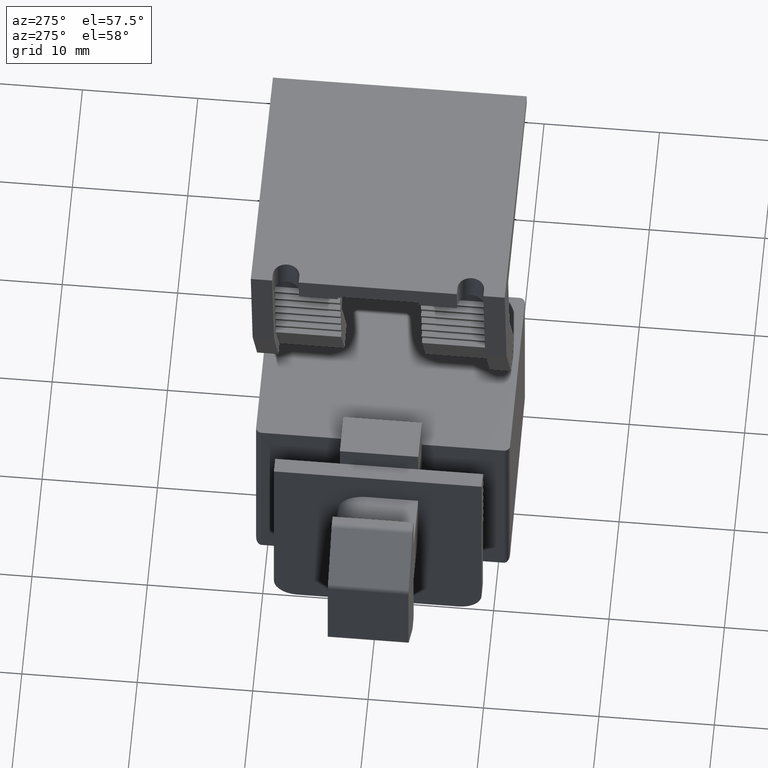
[diagram: clean part render]
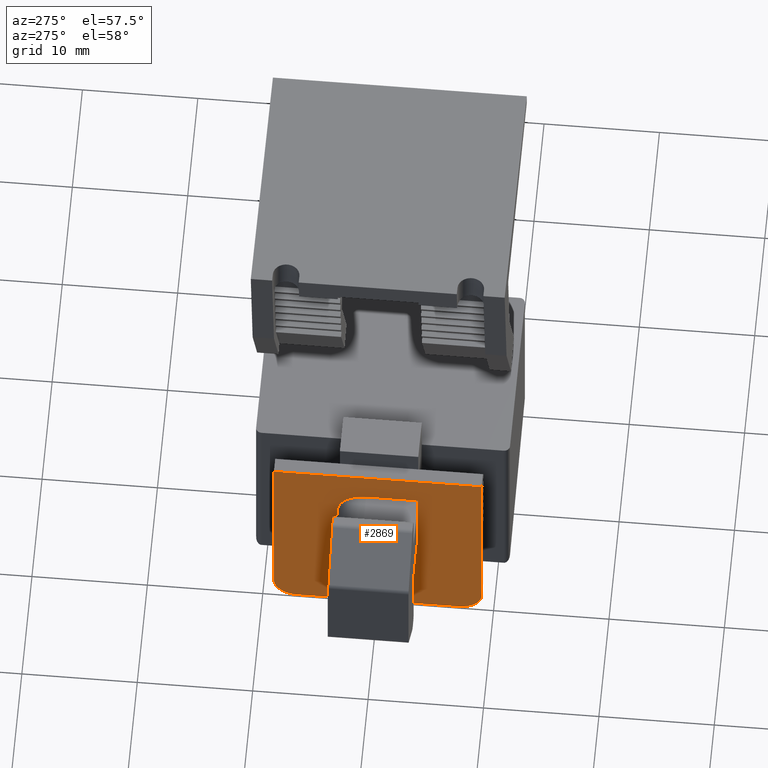
[diagram: same view with one face highlighted and labeled with its STEP entity id]
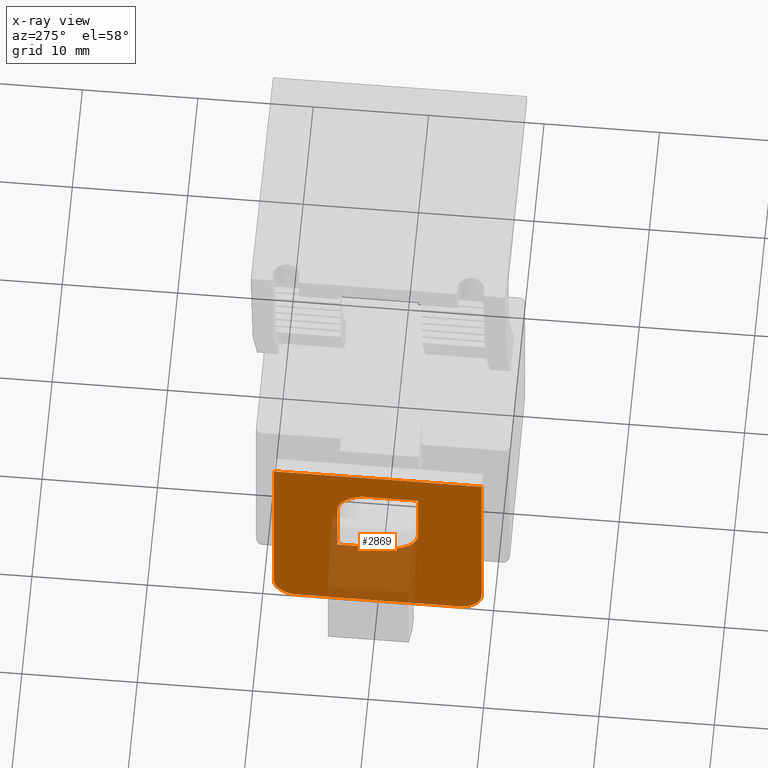
[diagram: x-ray of the same camera — body ghosted, the highlighted face saturated]
A machine part, auxiliary view. The second image highlights one B-rep face of the part: STEP entity #2869.
The next image is the same camera in x-ray: the body ghosted, the highlighted face saturated — about 22% of this face is hidden behind the body in this view.
In plain terms, the highlighted planar face has unit normal (-1, -0, 0).
Its self-contained STEP definition (entity closure, byte-faithful):
#30=FACE_BOUND('',#393,.T.);
#95=PLANE('',#3122);
#242=FACE_OUTER_BOUND('',#392,.T.);
#392=EDGE_LOOP('',(#2365,#2366,#2367,#2368,#2369,#2370));
#393=EDGE_LOOP('',(#2371,#2372,#2373,#2374,#2375,#2376));
#469=CIRCLE('',#3033,2.);
#470=CIRCLE('',#3037,2.);
#473=CIRCLE('',#3042,2.5);
#475=CIRCLE('',#3046,2.5);
#531=LINE('',#4069,#904);
#544=LINE('',#4102,#917);
#549=LINE('',#4117,#922);
#555=LINE('',#4134,#928);
#577=LINE('',#4196,#950);
#696=LINE('',#4437,#1069);
#699=LINE('',#4441,#1072);
#700=LINE('',#4442,#1073);
#904=VECTOR('',#3305,10.);
#917=VECTOR('',#3334,10.);
#922=VECTOR('',#3347,10.);
#928=VECTOR('',#3363,10.);
#950=VECTOR('',#3429,10.);
#1069=VECTOR('',#3642,10.);
#1072=VECTOR('',#3647,10.);
#1073=VECTOR('',#3648,10.);
#1277=VERTEX_POINT('',#4054);
#1278=VERTEX_POINT('',#4056);
#1282=VERTEX_POINT('',#4068);
#1285=VERTEX_POINT('',#4077);
#1291=VERTEX_POINT('',#4092);
#1292=VERTEX_POINT('',#4094);
#1294=VERTEX_POINT('',#4100);
#1297=VERTEX_POINT('',#4107);
#1298=VERTEX_POINT('',#4109);
#1300=VERTEX_POINT('',#4115);
#1398=VERTEX_POINT('',#4435);
#1399=VERTEX_POINT('',#4436);
#1563=EDGE_CURVE('',#1277,#1278,#469,.T.);
#1569=EDGE_CURVE('',#1282,#1278,#531,.T.);
#1574=EDGE_CURVE('',#1282,#1285,#470,.T.);
#1582=EDGE_CURVE('',#1291,#1292,#473,.F.);
#1586=EDGE_CURVE('',#1291,#1294,#544,.T.);
#1589=EDGE_CURVE('',#1297,#1298,#475,.F.);
#1593=EDGE_CURVE('',#1297,#1300,#549,.T.);
#1601=EDGE_CURVE('',#1294,#1298,#555,.T.);
#1633=EDGE_CURVE('',#1300,#1292,#577,.T.);
#1752=EDGE_CURVE('',#1398,#1399,#696,.T.);
#1755=EDGE_CURVE('',#1398,#1277,#699,.T.);
#1756=EDGE_CURVE('',#1285,#1399,#700,.T.);
#2365=ORIENTED_EDGE('',*,*,#1563,.F.);
#2366=ORIENTED_EDGE('',*,*,#1755,.F.);
#2367=ORIENTED_EDGE('',*,*,#1752,.T.);
#2368=ORIENTED_EDGE('',*,*,#1756,.F.);
#2369=ORIENTED_EDGE('',*,*,#1574,.F.);
#2370=ORIENTED_EDGE('',*,*,#1569,.T.);
#2371=ORIENTED_EDGE('',*,*,#1601,.T.);
#2372=ORIENTED_EDGE('',*,*,#1589,.F.);
#2373=ORIENTED_EDGE('',*,*,#1593,.T.);
#2374=ORIENTED_EDGE('',*,*,#1633,.T.);
#2375=ORIENTED_EDGE('',*,*,#1582,.F.);
#2376=ORIENTED_EDGE('',*,*,#1586,.T.);
#2869=ADVANCED_FACE('',(#242,#30),#95,.T.);
#3033=AXIS2_PLACEMENT_3D('',#4057,#3294,#3295);
#3037=AXIS2_PLACEMENT_3D('',#4078,#3312,#3313);
#3042=AXIS2_PLACEMENT_3D('',#4095,#3327,#3328);
#3046=AXIS2_PLACEMENT_3D('',#4110,#3340,#3341);
#3122=AXIS2_PLACEMENT_3D('',#4440,#3645,#3646);
#3294=DIRECTION('center_axis',(1.,0.,0.));
#3295=DIRECTION('ref_axis',(0.,0.707106781186548,0.707106781186547));
#3305=DIRECTION('',(0.,1.,0.));
#3312=DIRECTION('center_axis',(1.,0.,0.));
#3313=DIRECTION('ref_axis',(0.,-0.707106781186548,0.707106781186547));
#3327=DIRECTION('center_axis',(1.,0.,0.));
#3328=DIRECTION('ref_axis',(0.,0.707106781186547,0.707106781186547));
#3334=DIRECTION('',(0.,-1.,0.));
#3340=DIRECTION('center_axis',(1.,0.,0.));
#3341=DIRECTION('ref_axis',(0.,-0.707106781186547,-0.707106781186547));
#3347=DIRECTION('',(0.,1.,0.));
#3363=DIRECTION('',(0.,0.,-1.));
#3429=DIRECTION('',(0.,0.,1.));
#3642=DIRECTION('',(0.,-1.,0.));
#3645=DIRECTION('center_axis',(-1.,0.,0.));
#3646=DIRECTION('ref_axis',(0.,0.,1.));
#3647=DIRECTION('',(0.,0.,1.));
#3648=DIRECTION('',(0.,0.,-1.));
#4054=CARTESIAN_POINT('',(0.,9.,17.5));
#4056=CARTESIAN_POINT('',(0.,7.,19.5));
#4057=CARTESIAN_POINT('Origin',(0.,7.,17.5));
#4068=CARTESIAN_POINT('',(0.,-7.,19.5));
#4069=CARTESIAN_POINT('',(0.,0.,19.5));
#4077=CARTESIAN_POINT('',(0.,-9.,17.5));
#4078=CARTESIAN_POINT('Origin',(0.,-7.,17.5));
#4092=CARTESIAN_POINT('',(0.,1.,11.));
#4094=CARTESIAN_POINT('',(0.,3.5,8.5));
#4095=CARTESIAN_POINT('Origin',(0.,1.,8.5));
#4100=CARTESIAN_POINT('',(0.,-3.5,11.));
#4102=CARTESIAN_POINT('',(0.,0.,11.));
#4107=CARTESIAN_POINT('',(0.,-1.,3.));
#4109=CARTESIAN_POINT('',(0.,-3.5,5.5));
#4110=CARTESIAN_POINT('Origin',(0.,-1.,5.5));
#4115=CARTESIAN_POINT('',(0.,3.5,3.));
#4117=CARTESIAN_POINT('',(0.,0.,3.));
#4134=CARTESIAN_POINT('',(0.,-3.5,3.5));
#4196=CARTESIAN_POINT('',(0.,3.5,3.5));
#4435=CARTESIAN_POINT('',(0.,9.,0.));
#4436=CARTESIAN_POINT('',(0.,-9.,0.));
#4437=CARTESIAN_POINT('',(0.,0.,0.));
#4440=CARTESIAN_POINT('Origin',(0.,0.,0.));
#4441=CARTESIAN_POINT('',(0.,9.,0.));
#4442=CARTESIAN_POINT('',(0.,-9.,0.));